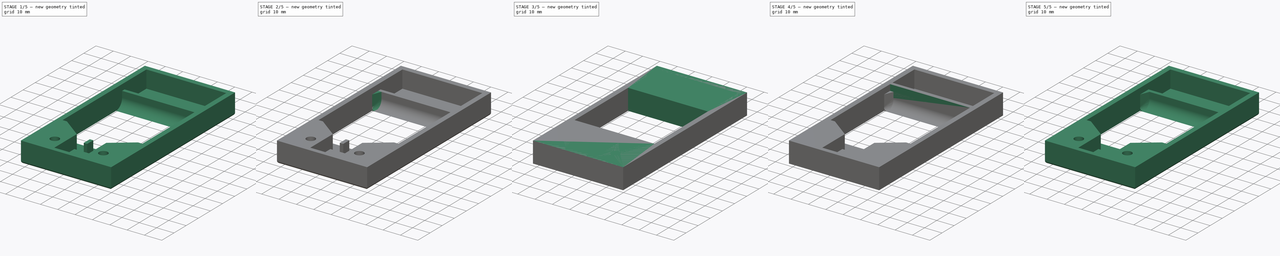
[diagram: build sequence overview — one tinted view per stage of 5, left to right]
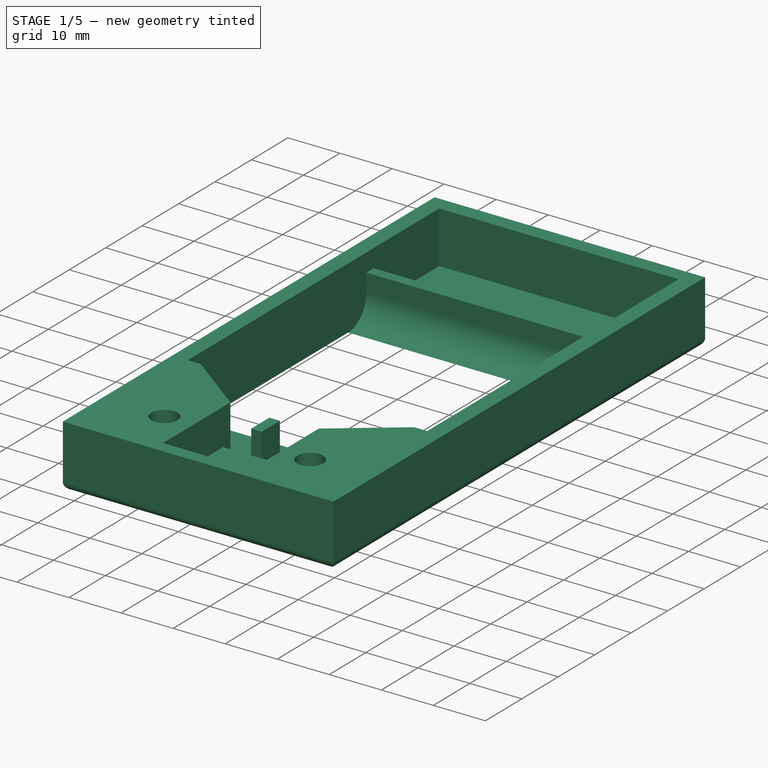
[diagram: stage 1 of 5 — iso view after this stage's code; geometry added in this stage tinted green]
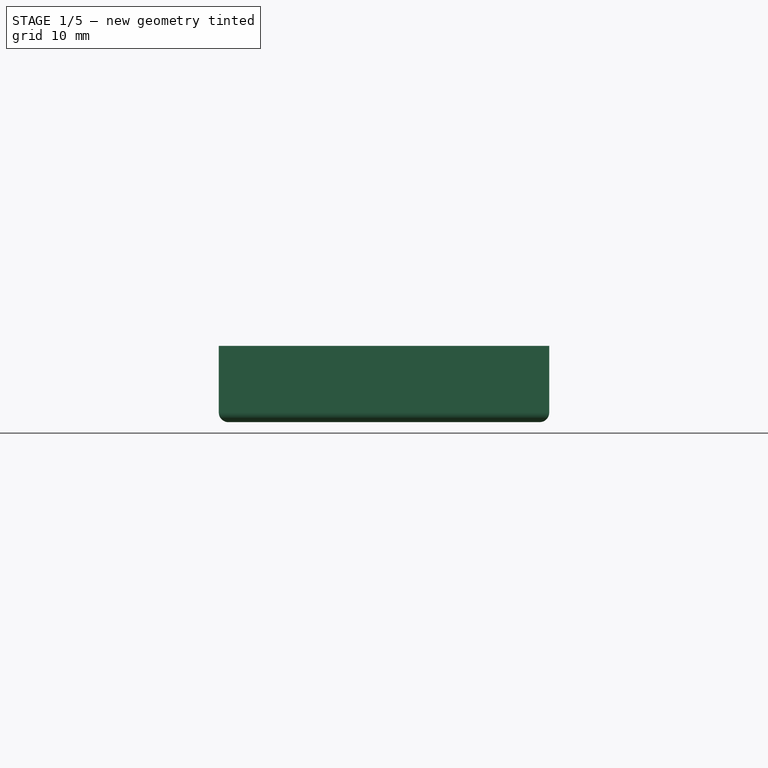
[diagram: stage 1 of 5 — front view after this stage's code; geometry added in this stage tinted green]
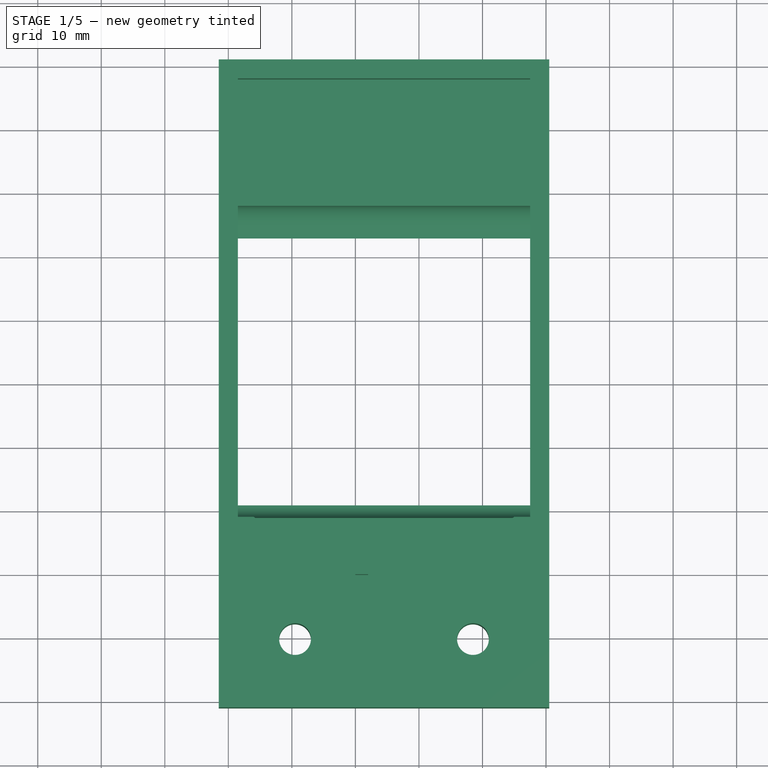
[diagram: stage 1 of 5 — top view after this stage's code; geometry added in this stage tinted green]
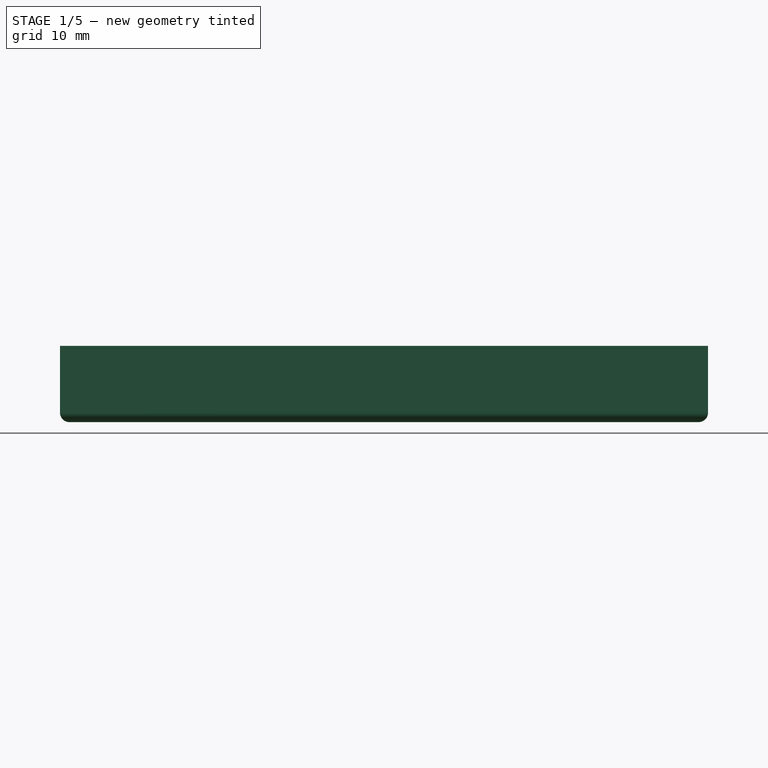
[diagram: stage 1 of 5 — right view after this stage's code; geometry added in this stage tinted green]
FCSTD DOCUMENT  (FreeCAD 0.16R6707 (Git))
Label: bxgr_optskin02_mold_a-v3.1
License: All rights reserved
LicenseURL: http://en.wikipedia.org/wiki/All_rights_reserved
objects: Sketcher::SketchObject×16, PartDesign::Pocket×6, Part::Extrusion×3, PartDesign::Pad×2, Part::Loft×2, Part::Cut×2, Part::Fillet×1, Part::Mirroring×1, Part::Feature×1, Part::Compound×1
note: 43 computed .brp shape members not serialized (recipe doc carries the construction recipe); baked Part::Feature solids carry a one-line shape summary decoded from their .brp

FEATURE [Sketcher::SketchObject] Sketch011
  Placement = pos=(0,0,0) rot=(0.57735,0.57735,0.57735;2.0944rad)
  sketch-geometry (4):
    g0: ArcOfCircle CenterX=0 CenterY=5 CenterZ=0 NormalX=0 NormalY=0 NormalZ=1 Radius=5 StartAngle=4.71239 EndAngle=6.28319
    g1: LineSegment StartX=5 StartY=5 StartZ=0 EndX=5 EndY=8.5 EndZ=0
    g2: LineSegment StartX=5 StartY=8.5 StartZ=0 EndX=0 EndY=8.5 EndZ=0
    g3: LineSegment StartX=0 StartY=8.5 StartZ=0 EndX=0 EndY=0 EndZ=0
  constraints (12):
    c: Tangent(g0,g1) = -1.5708
    c: Coincident(g1,g2)
    c: Horizontal(g2)
    c: Coincident(g2,g3)
    c: Coincident(g3,g0)
    c: Vertical(g3)
    c: Vertical(g1)
    c: PointOnObject(g0,g3)
    c: Radius(g0) = 5
    c: DistanceY(g0,g1) = 3.5
    c: PointOnObject(g0,g-2)
    c: DistanceY(g-1,g0) = 0
FEATURE [Sketcher::SketchObject] Sketch012
  Placement = pos=(0,0,0) rot=(1,0,0;1.5708rad)
  sketch-geometry (4):
    g0: ArcOfCircle CenterX=0 CenterY=2 CenterZ=0 NormalX=0 NormalY=0 NormalZ=1 Radius=2 StartAngle=4.71239 EndAngle=6.28319
    g1: LineSegment StartX=0 StartY=0 StartZ=0 EndX=0 EndY=8.5 EndZ=0
    g2: LineSegment StartX=0 StartY=8.5 StartZ=0 EndX=2 EndY=8.5 EndZ=0
    g3: LineSegment StartX=2 StartY=8.5 StartZ=0 EndX=2 EndY=2 EndZ=0
  constraints (13):
    c: Coincident(g0,g1)
    c: Coincident(g1,g2)
    c: Coincident(g2,g3)
    c: Coincident(g3,g0)
    c: Vertical(g3)
    c: Vertical(g1)
    c: Horizontal(g2)
    c: PointOnObject(g0,g1)
    c: Radius(g0) = 2
    c: Tangent(g0,g3)
    c: DistanceY(g3,g3) = 6.5
    c: PointOnObject(g0,g-2)
    c: DistanceY(g-1,g0) = 0
FEATURE [Part::Loft] Loft001
  Closed = false
  Placement = pos=(-0.01,0,0) rot=(0,0,1;0rad)
  Ruled = false
  Sections = -> [Sketch011,Sketch012]
  Solid = true
FEATURE [Sketcher::SketchObject] Sketch013
  sketch-geometry (4):
    g0: LineSegment StartX=0 StartY=0 StartZ=0 EndX=2 EndY=0 EndZ=0
    g1: LineSegment StartX=2 StartY=0 StartZ=0 EndX=2 EndY=5 EndZ=0
    g2: LineSegment StartX=2 StartY=5 StartZ=0 EndX=0 EndY=5 EndZ=0
    g3: LineSegment StartX=0 StartY=5 StartZ=0 EndX=0 EndY=0 EndZ=0
  constraints (12):
    c: Coincident(g0,g1)
    c: Coincident(g1,g2)
    c: Coincident(g2,g3)
    c: Coincident(g3,g0)
    c: Horizontal(g0)
    c: Horizontal(g2)
    c: Vertical(g1)
    c: Vertical(g3)
    c: DistanceX(g2,g2) = 2
    c: DistanceY(g1,g1) = 5
    c: DistanceX(g-1,g0) = 0
    c: DistanceY(g-1,g0) = 0
FEATURE [Part::Extrusion] Extrude001
  Base = -> Sketch013
  Dir = (0,0,8.5)
  Solid = true
FEATURE [Part::Feature] bxgr_optskin02_mold_a_v3_1_p1
  shape: bbox 52 x 102 x 12 mm, 42 faces (baked)
FEATURE [Sketcher::SketchObject] Sketch014
  ExternalGeometry = -> [bxgr_optskin02_mold_a_v3_1_p1]
  Placement = pos=(27.5,0,0) rot=(0.57735,-0.57735,-0.57735;2.0944rad)
  Support = -> bxgr_optskin02_mold_a_v3_1_p1 [Face16]
  sketch-geometry (3):
    g0: ArcOfCircle CenterX=-11 CenterY=2 CenterZ=0 NormalX=0 NormalY=0 NormalZ=1 Radius=2 StartAngle=4.71238 EndAngle=6.28319
    g1: LineSegment StartX=-9 StartY=2 StartZ=0 EndX=-9 EndY=0 EndZ=0
    g2: LineSegment StartX=-9 StartY=0 StartZ=0 EndX=-11 EndY=0 EndZ=0
  constraints (8):
    c: Tangent(g0,g1) = 1.5708
    c: Coincident(g1,g2)
    c: Coincident(g2,g0)
    c: Vertical(g1)
    c: Horizontal(g2)
    c: Tangent(g2,g0)
    c: Radius(g0) = 2
    c: Coincident(g1,g-3)
FEATURE [PartDesign::Pad] Pad001
  Length = 46
  Length2 = 100
  Sketch = -> Sketch014
  Type = 0
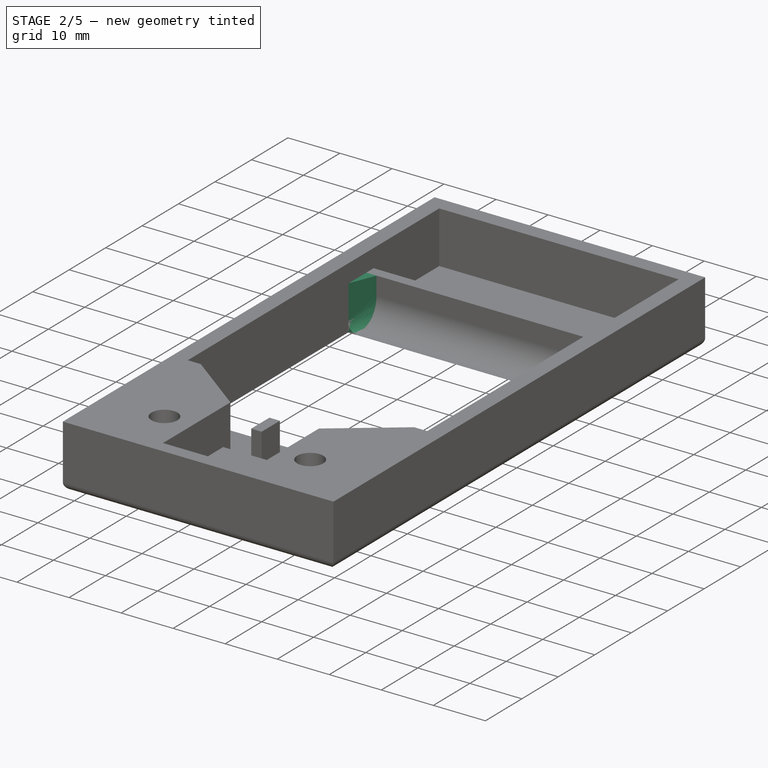
[diagram: stage 2 of 5 — iso view after this stage's code; geometry added in this stage tinted green]
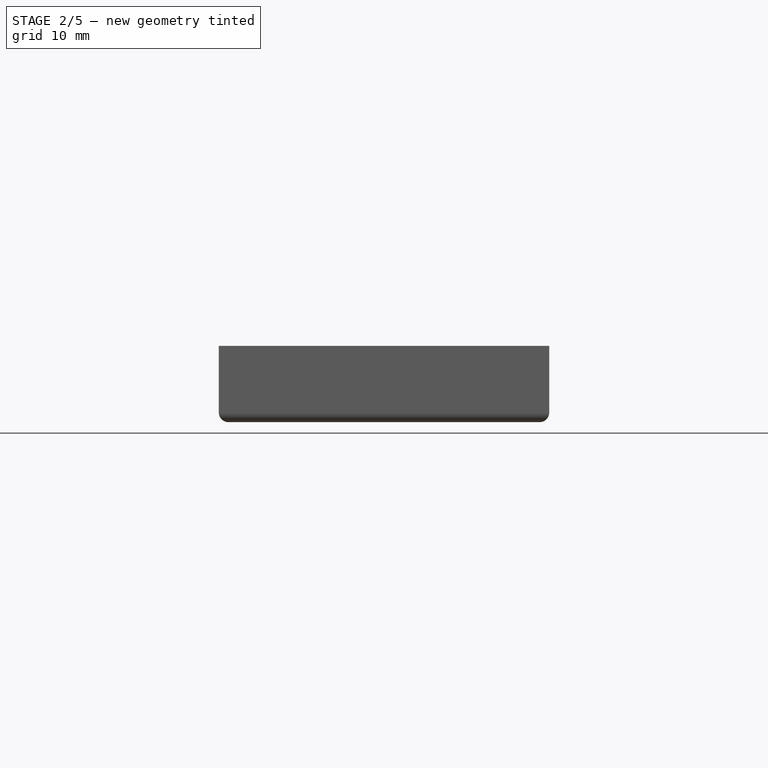
[diagram: stage 2 of 5 — front view after this stage's code; geometry added in this stage tinted green]
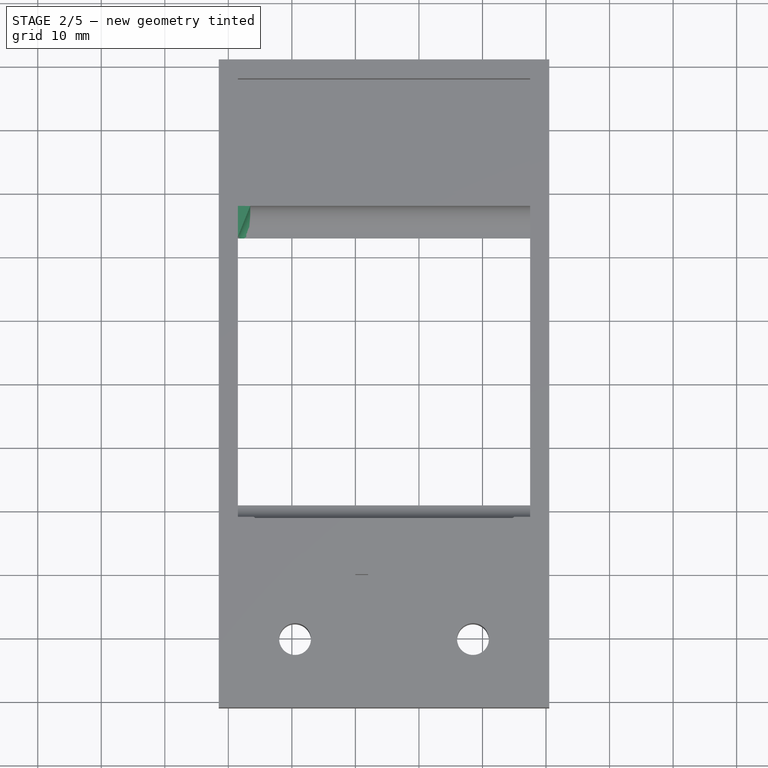
[diagram: stage 2 of 5 — top view after this stage's code; geometry added in this stage tinted green]
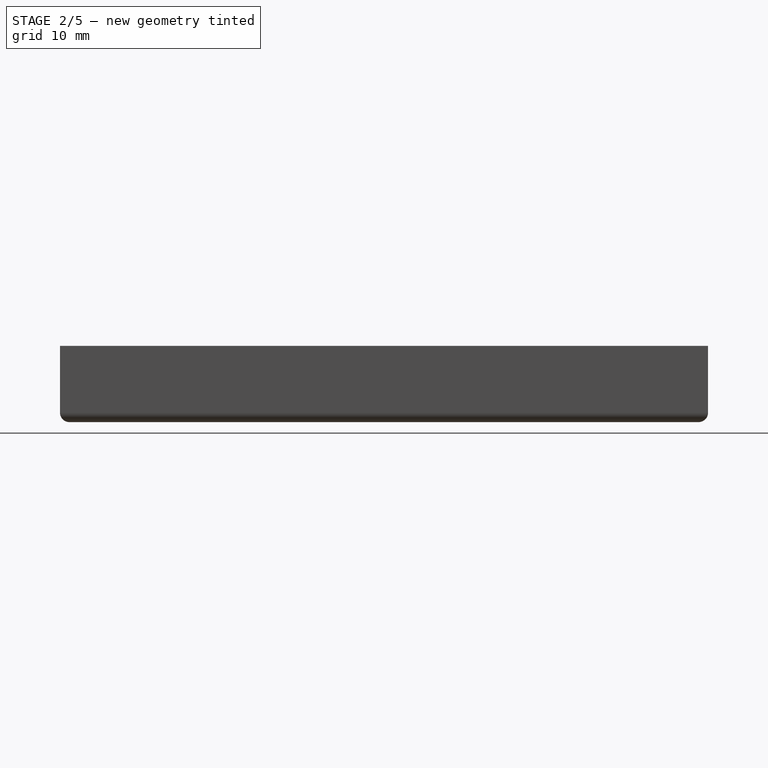
[diagram: stage 2 of 5 — right view after this stage's code; geometry added in this stage tinted green]
FEATURE [Sketcher::SketchObject] Sketch
  Placement = pos=(0,0,0) rot=(0.57735,0.57735,0.57735;2.0944rad)
  sketch-geometry (4):
    g0: ArcOfCircle CenterX=0 CenterY=5 CenterZ=0 NormalX=0 NormalY=0 NormalZ=1 Radius=5 StartAngle=4.71239 EndAngle=6.28319
    g1: LineSegment StartX=5 StartY=5 StartZ=0 EndX=5 EndY=8.5 EndZ=0
    g2: LineSegment StartX=5 StartY=8.5 StartZ=0 EndX=0 EndY=8.5 EndZ=0
    g3: LineSegment StartX=0 StartY=8.5 StartZ=0 EndX=0 EndY=0 EndZ=0
  constraints (12):
    c: Tangent(g0,g1) = -1.5708
    c: Coincident(g1,g2)
    c: Horizontal(g2)
    c: Coincident(g2,g3)
    c: Coincident(g3,g0)
    c: Vertical(g3)
    c: Vertical(g1)
    c: PointOnObject(g0,g3)
    c: Radius(g0) = 5
    c: DistanceY(g0,g1) = 3.5
    c: PointOnObject(g0,g-2)
    c: DistanceY(g-1,g0) = 0
FEATURE [Sketcher::SketchObject] Sketch009
  Placement = pos=(0,0,0) rot=(1,0,0;1.5708rad)
  sketch-geometry (4):
    g0: ArcOfCircle CenterX=0 CenterY=2 CenterZ=0 NormalX=0 NormalY=0 NormalZ=1 Radius=2 StartAngle=4.71239 EndAngle=6.28319
    g1: LineSegment StartX=0 StartY=0 StartZ=0 EndX=0 EndY=8.5 EndZ=0
    g2: LineSegment StartX=0 StartY=8.5 StartZ=0 EndX=2 EndY=8.5 EndZ=0
    g3: LineSegment StartX=2 StartY=8.5 StartZ=0 EndX=2 EndY=2 EndZ=0
  constraints (13):
    c: Coincident(g0,g1)
    c: Coincident(g1,g2)
    c: Coincident(g2,g3)
    c: Coincident(g3,g0)
    c: Vertical(g3)
    c: Vertical(g1)
    c: Horizontal(g2)
    c: PointOnObject(g0,g1)
    c: Radius(g0) = 2
    c: Tangent(g0,g3)
    c: DistanceY(g3,g3) = 6.5
    c: PointOnObject(g0,g-2)
    c: DistanceY(g-1,g0) = 0
FEATURE [Part::Loft] Loft
  Closed = false
  Placement = pos=(-0.01,0,0) rot=(0,0,1;0rad)
  Ruled = false
  Sections = -> [Sketch,Sketch009]
  Solid = true
FEATURE [Sketcher::SketchObject] Sketch010
  sketch-geometry (4):
    g0: LineSegment StartX=0 StartY=0 StartZ=0 EndX=2 EndY=0 EndZ=0
    g1: LineSegment StartX=2 StartY=0 StartZ=0 EndX=2 EndY=5 EndZ=0
    g2: LineSegment StartX=2 StartY=5 StartZ=0 EndX=0 EndY=5 EndZ=0
    g3: LineSegment StartX=0 StartY=5 StartZ=0 EndX=0 EndY=0 EndZ=0
  constraints (12):
    c: Coincident(g0,g1)
    c: Coincident(g1,g2)
    c: Coincident(g2,g3)
    c: Coincident(g3,g0)
    c: Horizontal(g0)
    c: Horizontal(g2)
    c: Vertical(g1)
    c: Vertical(g3)
    c: DistanceX(g2,g2) = 2
    c: DistanceY(g1,g1) = 5
    c: DistanceX(g-1,g0) = 0
    c: DistanceY(g-1,g0) = 0
FEATURE [Part::Extrusion] Extrude
  Base = -> Sketch010
  Dir = (0,0,8.5)
  Solid = true
FEATURE [Part::Cut] Cut001
  Base = -> Extrude001
  Tool = -> Loft001
FEATURE [Part::Mirroring] Part__Mirroring  label="Cut001 (Mirror #1)"
  Base = (0,0,0)
  Normal = (1,0,0)
  Placement = pos=(-16.55,53,0) rot=(0,0,1;0rad)
  Source = -> Cut001
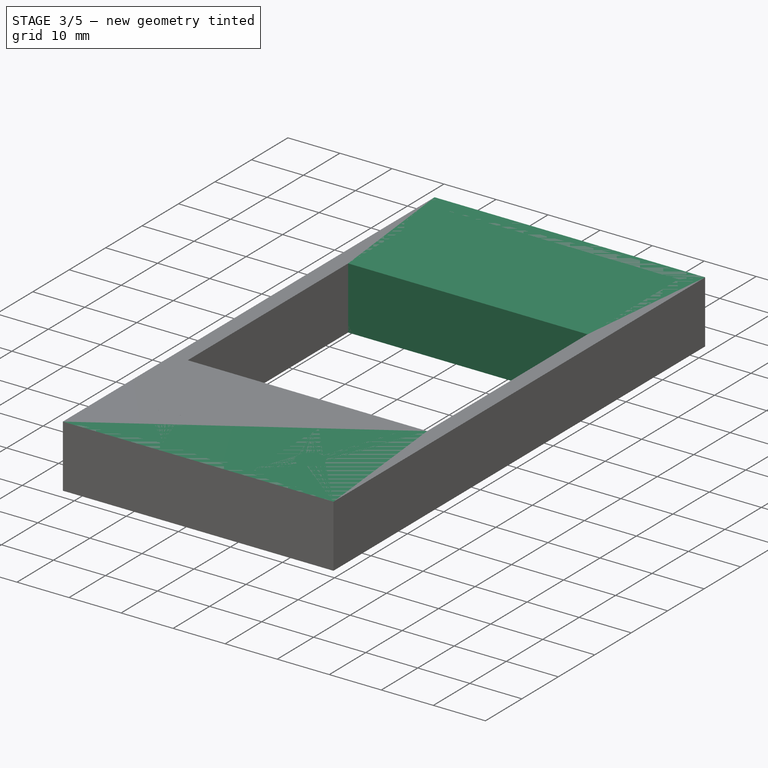
[diagram: stage 3 of 5 — iso view after this stage's code; geometry added in this stage tinted green]
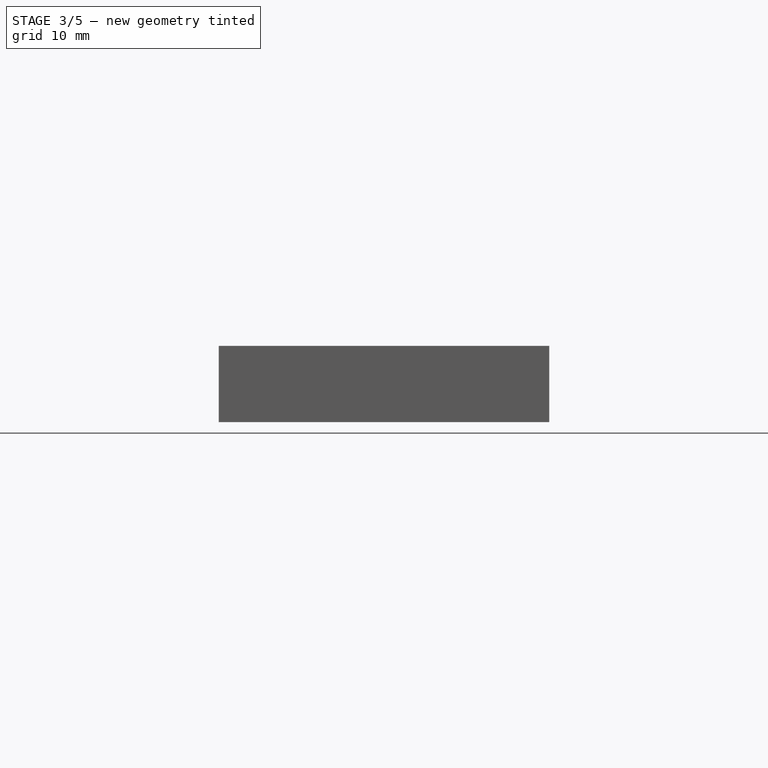
[diagram: stage 3 of 5 — front view after this stage's code; geometry added in this stage tinted green]
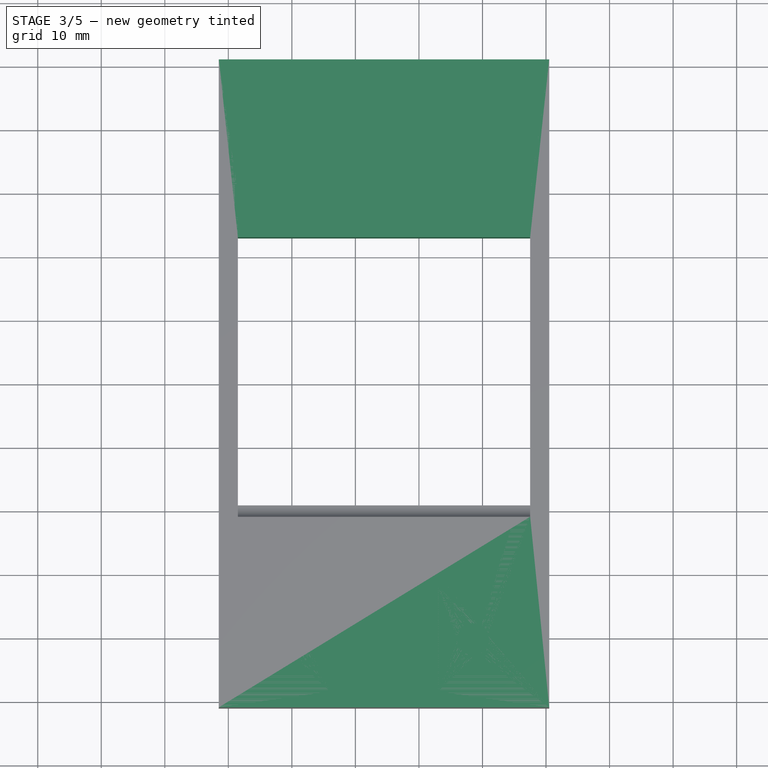
[diagram: stage 3 of 5 — top view after this stage's code; geometry added in this stage tinted green]
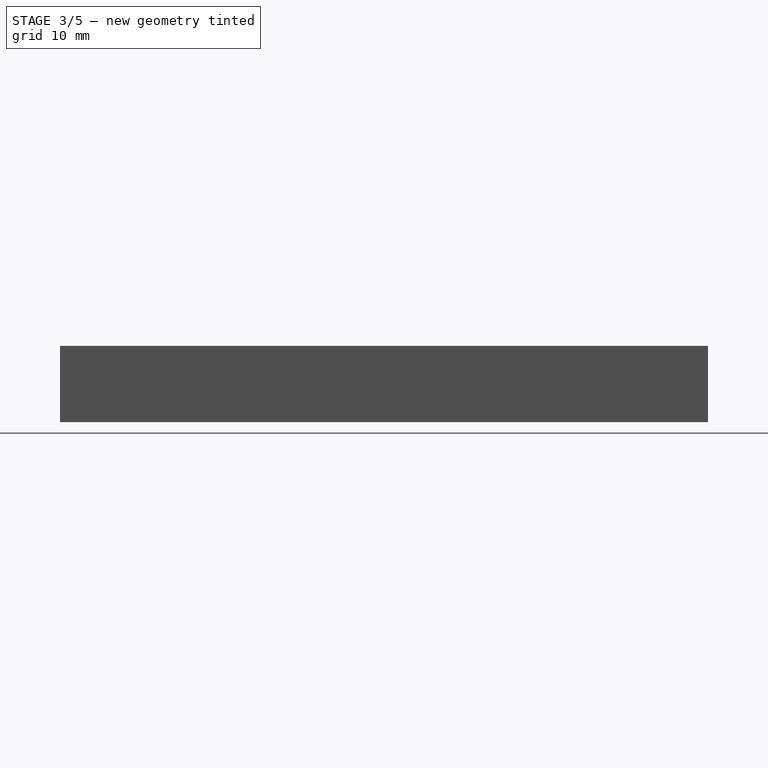
[diagram: stage 3 of 5 — right view after this stage's code; geometry added in this stage tinted green]
FEATURE [Sketcher::SketchObject] Sketch001
  sketch-geometry (8):
    g0: LineSegment StartX=-21.5 StartY=81 StartZ=0 EndX=30.5 EndY=81 EndZ=0
    g1: LineSegment StartX=30.5 StartY=81 StartZ=0 EndX=30.5 EndY=-21 EndZ=0
    g2: LineSegment StartX=30.5 StartY=-21 StartZ=0 EndX=-21.5 EndY=-21 EndZ=0
    g3: LineSegment StartX=-21.5 StartY=-21 StartZ=0 EndX=-21.5 EndY=81 EndZ=0
    g4: LineSegment StartX=-18.5 StartY=9 StartZ=0 EndX=27.5 EndY=9 EndZ=0
    g5: LineSegment StartX=27.5 StartY=9 StartZ=0 EndX=27.5 EndY=53 EndZ=0
    g6: LineSegment StartX=27.5 StartY=53 StartZ=0 EndX=-18.5 EndY=53 EndZ=0
    g7: LineSegment StartX=-18.5 StartY=53 StartZ=0 EndX=-18.5 EndY=9 EndZ=0
  constraints (24):
    c: Coincident(g0,g1)
    c: Coincident(g1,g2)
    c: Coincident(g2,g3)
    c: Coincident(g3,g0)
    c: Horizontal(g0)
    c: Horizontal(g2)
    c: Vertical(g1)
    c: Vertical(g3)
    c: DistanceX(g0,g0) = 52
    c: DistanceX(g2,g-1) = 21.5
    c: DistanceY(g2,g-1) = 21
    c: Coincident(g4,g5)
    c: Coincident(g5,g6)
    c: Coincident(g6,g7)
    c: Coincident(g7,g4)
    c: Horizontal(g4)
    c: Horizontal(g6)
    c: Vertical(g5)
    c: Vertical(g7)
    c: DistanceX(g2,g4) = 3
    c: DistanceX(g4,g1) = 3
    c: DistanceY(g-1,g4) = 9
    c: DistanceY(g4,g5) = 44
    c: DistanceY(g6,g0) = 28
FEATURE [PartDesign::Pad] Pad
  Length = 12
  Length2 = 100
  Sketch = -> Sketch001
  Type = 0
FEATURE [Part::Cut] Cut
  Base = -> Extrude
  Placement = pos=(25.5,53,0) rot=(0,0,1;0rad)
  Tool = -> Loft
FEATURE [Sketcher::SketchObject] Sketch015
  ExternalGeometry = -> [Pad001]
  Placement = pos=(0,9,0) rot=(0,0.707107,0.707107;3.14159rad)
  Support = -> Pad001 [Face13]
  sketch-geometry (6):
    g0: ArcOfCircle CenterX=-25.5 CenterY=1.99999 CenterZ=0 NormalX=0 NormalY=0 NormalZ=1 Radius=2 StartAngle=3.14159 EndAngle=4.71239
    g1: LineSegment StartX=-27.5 StartY=2 StartZ=0 EndX=-27.5 EndY=-1.12044e-05 EndZ=0
    g2: LineSegment StartX=-27.5 StartY=-1.12044e-05 StartZ=0 EndX=-25.5 EndY=-1.12044e-05 EndZ=0
    g3: ArcOfCircle CenterX=16.5 CenterY=2 CenterZ=0 NormalX=0 NormalY=0 NormalZ=1 Radius=2 StartAngle=4.71239 EndAngle=6.28319
    g4: LineSegment StartX=16.5 StartY=2.04e-08 StartZ=0 EndX=18.5 EndY=2.04e-08 EndZ=0
    g5: LineSegment StartX=18.5 StartY=2.04e-08 StartZ=0 EndX=18.5 EndY=2 EndZ=0
  constraints (18):
    c: Coincident(g0,g1)
    c: Coincident(g1,g2)
    c: Coincident(g2,g0)
    c: Coincident(g3,g4)
    c: Coincident(g4,g5)
    c: Coincident(g5,g3)
    c: Horizontal(g2)
    c: Vertical(g1)
    c: Horizontal(g4)
    c: Vertical(g5)
    c: Radius(g3) = 2
    c: Radius(g0) = 2
    c: Tangent(g2,g0)
    c: Tangent(g1,g0)
    c: Tangent(g4,g3)
    c: Tangent(g5,g3)
    c: Coincident(g3,g-4)
    c: Coincident(g0,g-3)
FEATURE [Part::Extrusion] Extrude002
  Base = -> Sketch015
  Dir = (0,46,0)
  Solid = false
FEATURE [Part::Compound] Compound
  Links = -> [Extrude002,Pad001,Part__Mirroring,Cut]
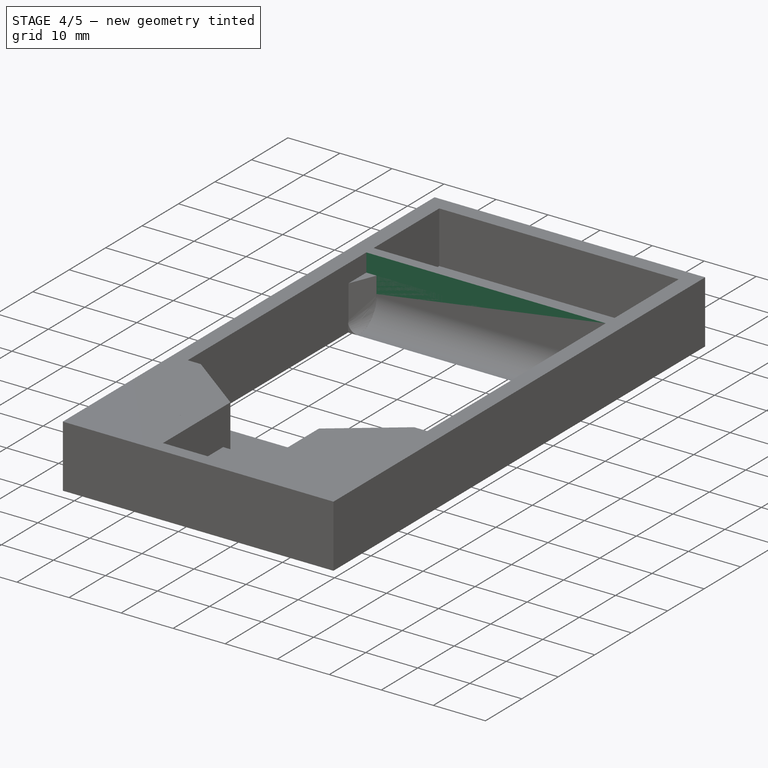
[diagram: stage 4 of 5 — iso view after this stage's code; geometry added in this stage tinted green]
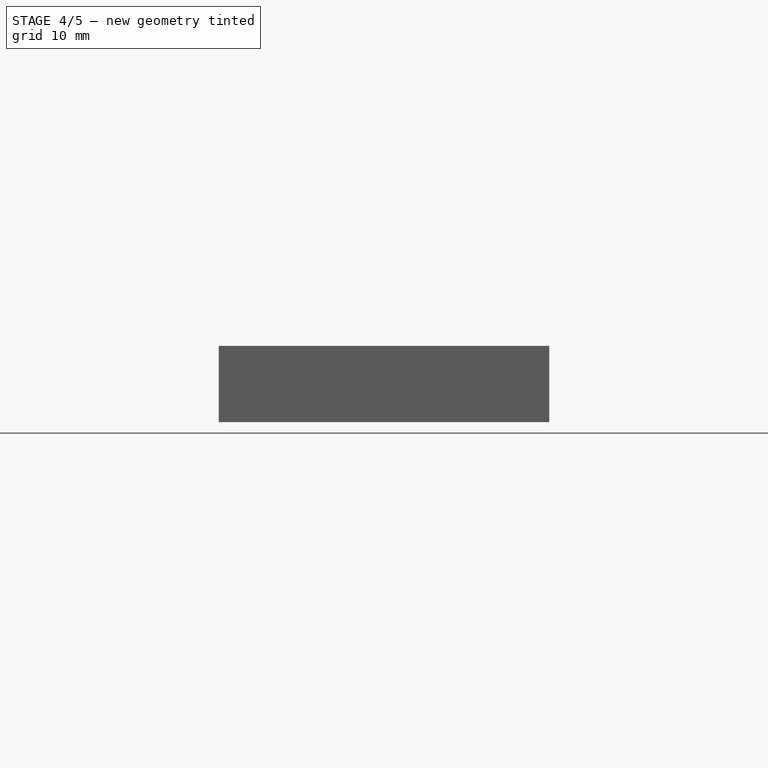
[diagram: stage 4 of 5 — front view after this stage's code; geometry added in this stage tinted green]
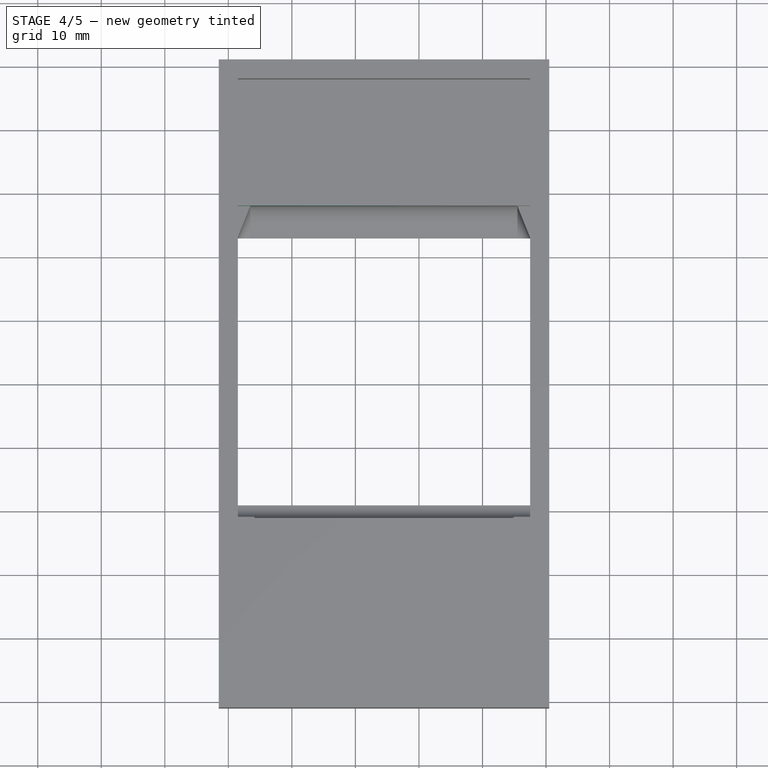
[diagram: stage 4 of 5 — top view after this stage's code; geometry added in this stage tinted green]
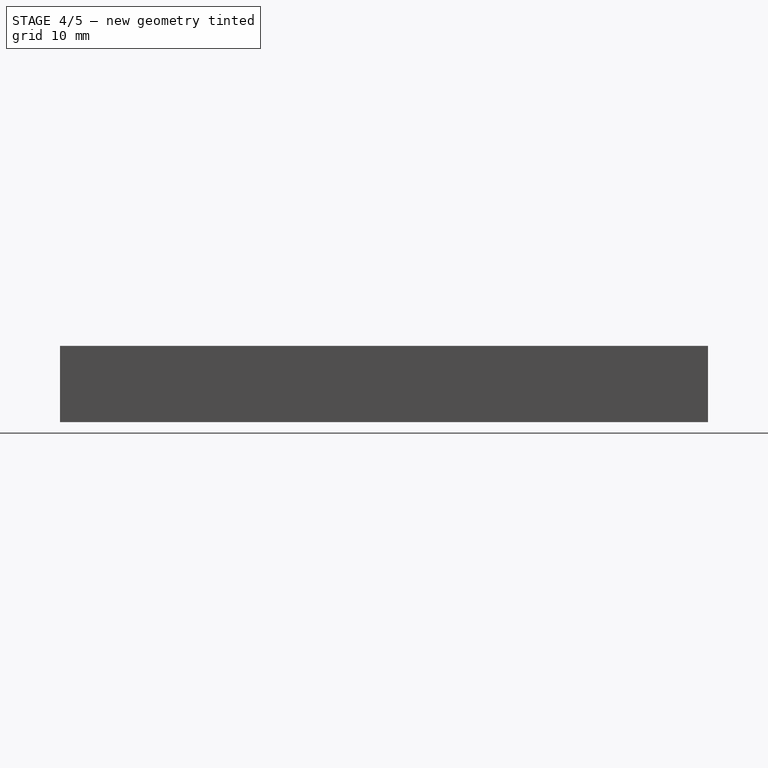
[diagram: stage 4 of 5 — right view after this stage's code; geometry added in this stage tinted green]
FEATURE [Sketcher::SketchObject] Sketch002
  Placement = pos=(0,0,12) rot=(0,0,1;0rad)
  Support = -> Pad [Face10]
  sketch-geometry (6):
    g0: LineSegment StartX=-16 StartY=9 StartZ=0 EndX=-4 EndY=0 EndZ=0
    g1: LineSegment StartX=13 StartY=0 StartZ=0 EndX=25 EndY=9 EndZ=0
    g2: LineSegment StartX=-16 StartY=9 StartZ=0 EndX=25 EndY=9 EndZ=0
    g3: LineSegment StartX=13 StartY=0 StartZ=0 EndX=13 EndY=-2 EndZ=0
    g4: LineSegment StartX=13 StartY=-2 StartZ=0 EndX=-4 EndY=-2 EndZ=0
    g5: LineSegment StartX=-4 StartY=-2 StartZ=0 EndX=-4 EndY=0 EndZ=0
  constraints (18):
    c: DistanceX(g0,g1) = 17
    c: DistanceY(g0,g0) = 9
    c: DistanceY(g1,g1) = 9
    c: Horizontal(g2)
    c: Coincident(g3,g4)
    c: Coincident(g4,g5)
    c: Horizontal(g4)
    c: Vertical(g3)
    c: Vertical(g5)
    c: DistanceY(g3,g1) = 2
    c: Coincident(g2,g0)
    c: DistanceX(g3,g1) = 12
    c: Coincident(g1,g3)
    c: DistanceY(g4,g-1) = 2
    c: Coincident(g2,g1)
    c: DistanceX(g0,g-1) = 4
    c: DistanceX(g0,g0) = 12
    c: Coincident(g5,g0)
FEATURE [PartDesign::Pocket] Pocket
  Length = 10
  Sketch = -> Sketch002
  Type = 0
FEATURE [Sketcher::SketchObject] Sketch003
  ExternalGeometry = -> [Pocket]
  Placement = pos=(0,0,12) rot=(0,0,1;0rad)
  Support = -> Pocket [Face5]
  sketch-geometry (4):
    g0: LineSegment StartX=-4 StartY=-2 StartZ=0 EndX=13 EndY=-2 EndZ=0
    g1: LineSegment StartX=13 StartY=-2 StartZ=0 EndX=13 EndY=-18.5 EndZ=0
    g2: LineSegment StartX=13 StartY=-18.5 StartZ=0 EndX=-4 EndY=-18.5 EndZ=0
    g3: LineSegment StartX=-4 StartY=-18.5 StartZ=0 EndX=-4 EndY=-2 EndZ=0
  constraints (11):
    c: Coincident(g0,g1)
    c: Coincident(g1,g2)
    c: Coincident(g2,g3)
    c: Coincident(g3,g0)
    c: Horizontal(g0)
    c: Horizontal(g2)
    c: Vertical(g1)
    c: Vertical(g3)
    c: Coincident(g0,g-3)
    c: Coincident(g0,g-3)
    c: DistanceY(g1,g0) = 16.5
FEATURE [PartDesign::Pocket] Pocket001
  Length = 7
  Sketch = -> Sketch003
  Type = 0
FEATURE [Sketcher::SketchObject] Sketch004
  ExternalGeometry = -> [Pocket001]
  Placement = pos=(27.5,0,0) rot=(0.57735,-0.57735,-0.57735;2.0944rad)
  Support = -> Pocket001 [Face8]
  sketch-geometry (4):
    g0: ArcOfCircle CenterX=-53 CenterY=5 CenterZ=0 NormalX=0 NormalY=0 NormalZ=1 Radius=5 StartAngle=3.14159 EndAngle=4.71239
    g1: LineSegment StartX=-53 StartY=4.8e-11 StartZ=0 EndX=-53 EndY=12 EndZ=0
    g2: LineSegment StartX=-53 StartY=12 StartZ=0 EndX=-58 EndY=12 EndZ=0
    g3: LineSegment StartX=-58 StartY=12 StartZ=0 EndX=-58 EndY=5 EndZ=0
  constraints (11):
    c: Coincident(g0,g-3)
    c: Radius(g0) = 5
    c: DistanceY(g0,g0) = 5
    c: DistanceY(g0,g0) = 5
    c: Coincident(g0,g1)
    c: Coincident(g1,g2)
    c: Horizontal(g2)
    c: Coincident(g2,g3)
    c: Coincident(g3,g0)
    c: Coincident(g1,g-3)
    c: DistanceX(g2,g1) = 5
FEATURE [PartDesign::Pocket] Pocket002
  Length = 46
  Reversed = true
  Sketch = -> Sketch004
  Type = 0
FEATURE [Sketcher::SketchObject] Sketch005
  ExternalGeometry = -> [Pocket002]
  Placement = pos=(0,0,12) rot=(0,0,1;0rad)
  Support = -> Pocket002 [Face5]
  sketch-geometry (4):
    g0: LineSegment StartX=-18.5 StartY=78 StartZ=0 EndX=27.5 EndY=78 EndZ=0
    g1: LineSegment StartX=27.5 StartY=78 StartZ=0 EndX=27.5 EndY=60 EndZ=0
    g2: LineSegment StartX=27.5 StartY=60 StartZ=0 EndX=-18.5 EndY=60 EndZ=0
    g3: LineSegment StartX=-18.5 StartY=60 StartZ=0 EndX=-18.5 EndY=78 EndZ=0
  constraints (12):
    c: Coincident(g0,g1)
    c: Coincident(g1,g2)
    c: Coincident(g2,g3)
    c: Coincident(g3,g0)
    c: Horizontal(g0)
    c: Horizontal(g2)
    c: Vertical(g1)
    c: Vertical(g3)
    c: DistanceX(g-4,g0) = 3
    c: DistanceX(g0,g-4) = 3
    c: DistanceY(g0,g-4) = 3
    c: DistanceY(g-3,g1) = 2
FEATURE [PartDesign::Pocket] Pocket003
  Length = 10
  Sketch = -> Sketch005
  Type = 0
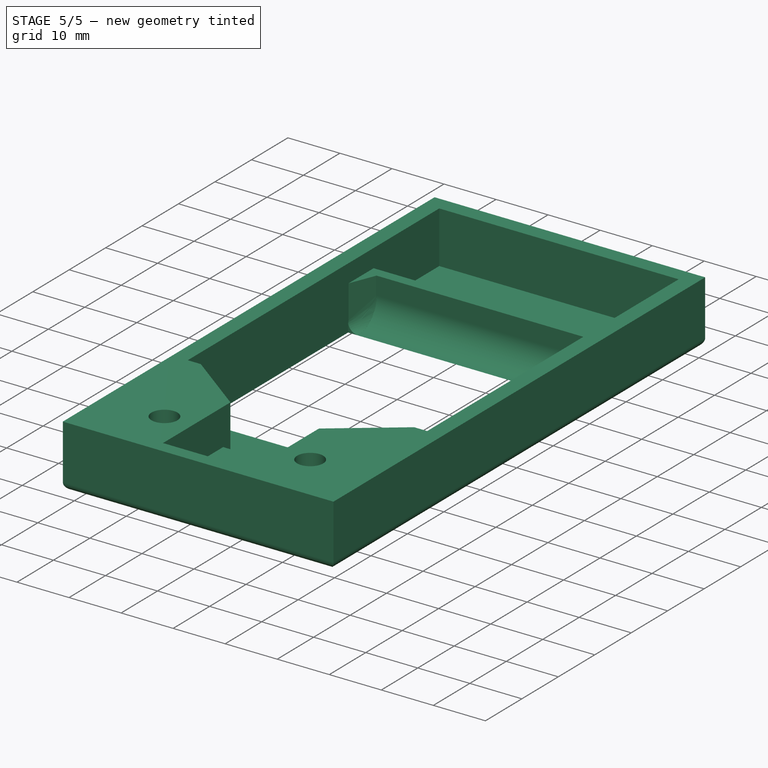
[diagram: stage 5 of 5 — iso view after this stage's code; geometry added in this stage tinted green]
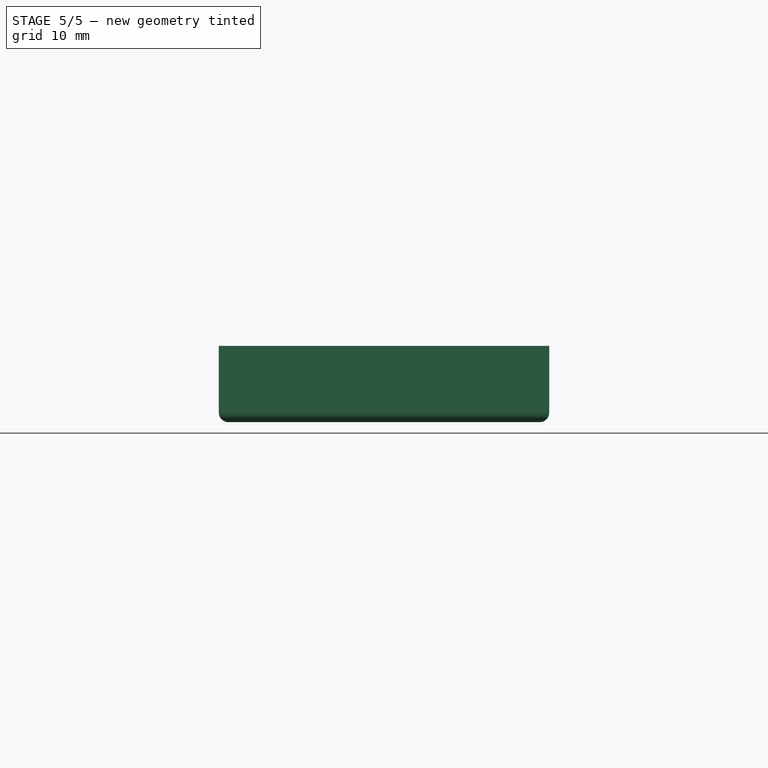
[diagram: stage 5 of 5 — front view after this stage's code; geometry added in this stage tinted green]
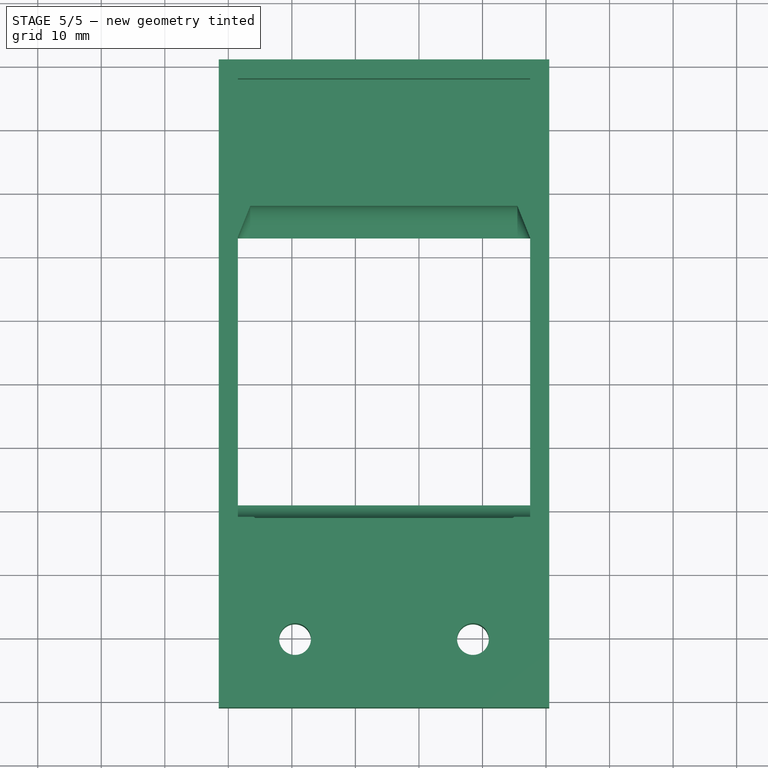
[diagram: stage 5 of 5 — top view after this stage's code; geometry added in this stage tinted green]
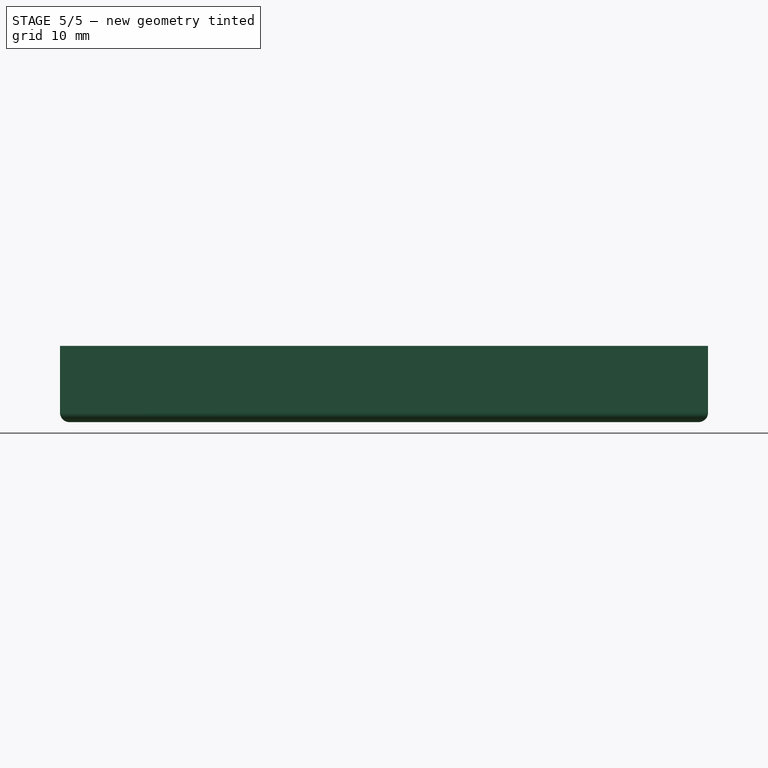
[diagram: stage 5 of 5 — right view after this stage's code; geometry added in this stage tinted green]
FEATURE [Sketcher::SketchObject] Sketch006
  ExternalGeometry = -> [Pocket003]
  Placement = pos=(0,0,12) rot=(0,0,1;0rad)
  Support = -> Pocket003 [Face5]
  sketch-geometry (4):
    g0: LineSegment StartX=-18.5 StartY=58 StartZ=0 EndX=27.5 EndY=58 EndZ=0
    g1: LineSegment StartX=27.5 StartY=58 StartZ=0 EndX=27.5 EndY=78 EndZ=0
    g2: LineSegment StartX=27.5 StartY=78 StartZ=0 EndX=-18.5 EndY=78 EndZ=0
    g3: LineSegment StartX=-18.5 StartY=78 StartZ=0 EndX=-18.5 EndY=58 EndZ=0
  constraints (10):
    c: Coincident(g0,g1)
    c: Coincident(g1,g2)
    c: Coincident(g2,g3)
    c: Coincident(g3,g0)
    c: Horizontal(g0)
    c: Horizontal(g2)
    c: Vertical(g1)
    c: Vertical(g3)
    c: Coincident(g0,g-3)
    c: Coincident(g1,g-4)
FEATURE [PartDesign::Pocket] Pocket004
  Length = 3.5
  Sketch = -> Sketch006
  Type = 0
FEATURE [Sketcher::SketchObject] Sketch007
  ExternalGeometry = -> [Pocket004]
  Placement = pos=(0,0,0) rot=(1,0,0;3.14159rad)
  Support = -> Pocket004 [Face4]
  sketch-geometry (16):
    g0: LineSegment StartX=-19.5 StartY=19 StartZ=0 EndX=-16.5 EndY=19 EndZ=0
    g1: LineSegment StartX=-16.5 StartY=19 StartZ=0 EndX=-16.5 EndY=16 EndZ=0
    g2: LineSegment StartX=-16.5 StartY=16 StartZ=0 EndX=-19.5 EndY=16 EndZ=0
    g3: LineSegment StartX=-19.5 StartY=16 StartZ=0 EndX=-19.5 EndY=19 EndZ=0
    g4: LineSegment StartX=25.5 StartY=19 StartZ=0 EndX=28.5 EndY=19 EndZ=0
    g5: LineSegment StartX=28.5 StartY=19 StartZ=0 EndX=28.5 EndY=16 EndZ=0
    g6: LineSegment StartX=28.5 StartY=16 StartZ=0 EndX=25.5 EndY=16 EndZ=0
    g7: LineSegment StartX=25.5 StartY=16 StartZ=0 EndX=25.5 EndY=19 EndZ=0
    g8: LineSegment StartX=-19.5 StartY=-76 StartZ=0 EndX=-16.5 EndY=-76 EndZ=0
    g9: LineSegment StartX=-16.5 StartY=-76 StartZ=0 EndX=-16.5 EndY=-79 EndZ=0
    g10: LineSegment StartX=-16.5 StartY=-79 StartZ=0 EndX=-19.5 EndY=-79 EndZ=0
    g11: LineSegment StartX=-19.5 StartY=-79 StartZ=0 EndX=-19.5 EndY=-76 EndZ=0
    g12: LineSegment StartX=25.5 StartY=-76 StartZ=0 EndX=28.5 EndY=-76 EndZ=0
    g13: LineSegment StartX=28.5 StartY=-76 StartZ=0 EndX=28.5 EndY=-79 EndZ=0
    g14: LineSegment StartX=28.5 StartY=-79 StartZ=0 EndX=25.5 EndY=-79 EndZ=0
    g15: LineSegment StartX=25.5 StartY=-79 StartZ=0 EndX=25.5 EndY=-76 EndZ=0
  constraints (48):
    c: Coincident(g0,g1)
    c: Coincident(g1,g2)
    c: Coincident(g2,g3)
    c: Coincident(g3,g0)
    c: Horizontal(g0)
    c: Horizontal(g2)
    c: Vertical(g1)
    c: Vertical(g3)
    c: Coincident(g4,g5)
    c: Coincident(g5,g6)
    c: Coincident(g6,g7)
    c: Coincident(g7,g4)
    c: Horizontal(g4)
    c: Horizontal(g6)
    c: Vertical(g5)
    c: Vertical(g7)
    c: Coincident(g8,g9)
    c: Coincident(g9,g10)
    c: Coincident(g10,g11)
    c: Coincident(g11,g8)
    c: Horizontal(g8)
    c: Horizontal(g10)
    c: Vertical(g9)
    c: Vertical(g11)
    c: Coincident(g12,g13)
    c: Coincident(g13,g14)
    c: Coincident(g14,g15)
    c: Coincident(g15,g12)
    c: Horizontal(g12)
    c: Horizontal(g14)
    c: Vertical(g13)
    c: Vertical(g15)
    c: DistanceX(g-3,g0) = 2
    c: DistanceY(g0,g-3) = 2
    c: DistanceX(g0,g0) = 3
    c: DistanceY(g3,g3) = 3
    c: DistanceY(g7,g7) = 3
    c: DistanceX(g6,g6) = 3
    c: DistanceX(g4,g-4) = 2
    c: DistanceY(g4,g-4) = 2
    c: DistanceY(g11,g11) = 3
    c: DistanceX(g10,g10) = 3
    c: DistanceX(g-3,g10) = 2
    c: DistanceY(g-3,g10) = 2
    c: DistanceX(g13,g-4) = 2
    c: DistanceY(g-4,g13) = 2
    c: DistanceX(g14,g14) = 3
    c: DistanceY(g13,g13) = 3
FEATURE [Sketcher::SketchObject] Sketch008
  ExternalGeometry = -> [Pocket004]
  Placement = pos=(0,0,12) rot=(0,0,1;0rad)
  Support = -> Pocket004 [Face5]
  sketch-geometry (2):
    g0: Circle CenterX=-9.5 CenterY=-10.25 CenterZ=0 NormalX=0 NormalY=0 NormalZ=1 Radius=2.5
    g1: Circle CenterX=18.5 CenterY=-10.25 CenterZ=0 NormalX=0 NormalY=0 NormalZ=1 Radius=2.5
  constraints (6):
    c: DistanceX(g0,g-3) = 5.5
    c: DistanceX(g-4,g1) = 5.5
    c: DistanceY(g0,g-3) = 8.25
    c: DistanceY(g1,g-4) = 8.25
    c: Radius(g0) = 2.5
    c: Equal(g0,g1)
FEATURE [PartDesign::Pocket] Pocket005
  Length = 12
  Sketch = -> Sketch008
  Type = 0
FEATURE [Part::Fillet] Fillet
  Base = -> Pocket005
  Edges = 4 edges r=1.5: [Edge3,Edge6,Edge9,Edge11]
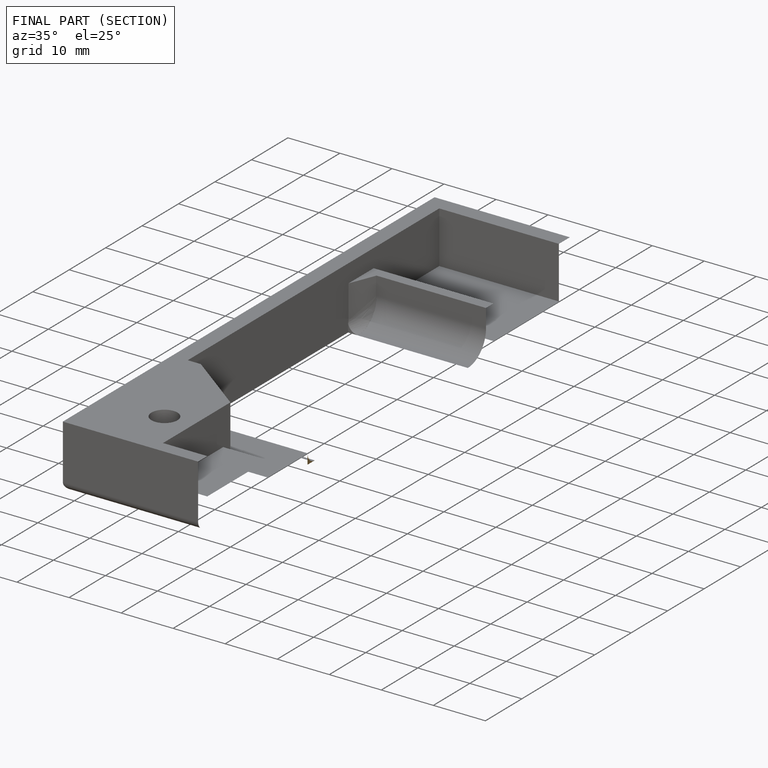
[diagram: finished part — half-section view (interior)]
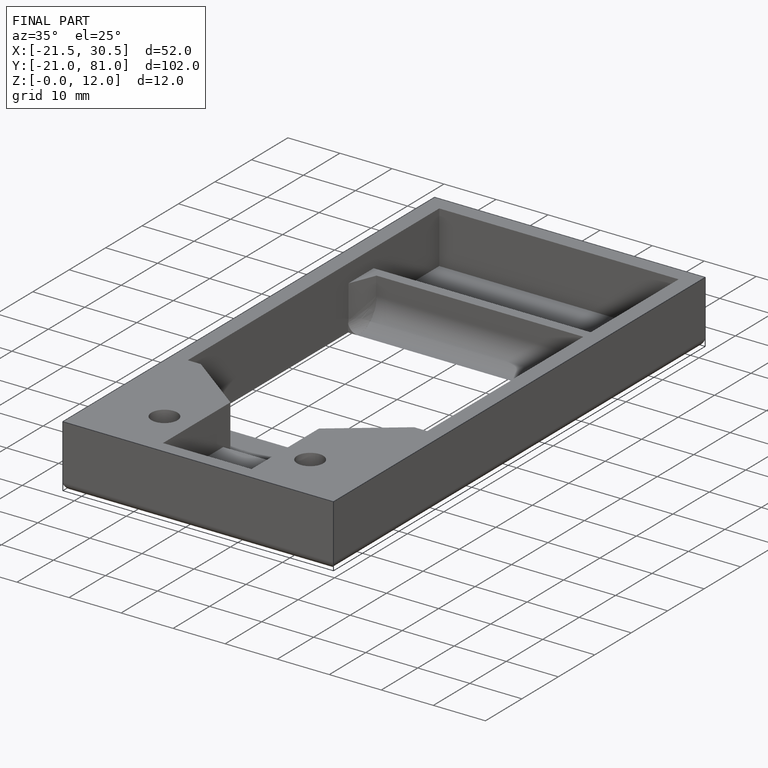
[diagram: finished part — iso view with bounding-box wireframe]
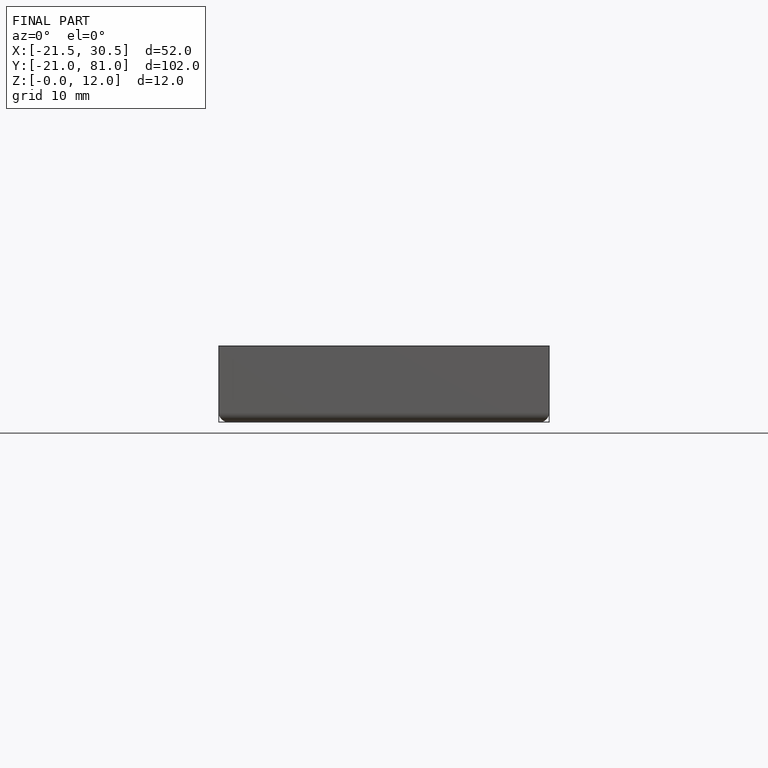
[diagram: finished part — front view with bounding-box wireframe]
